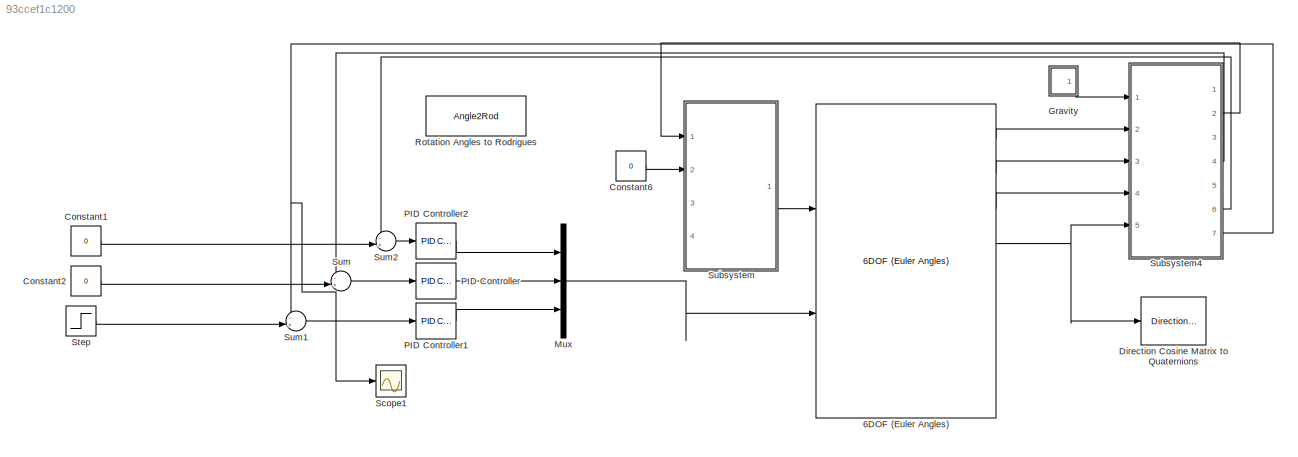
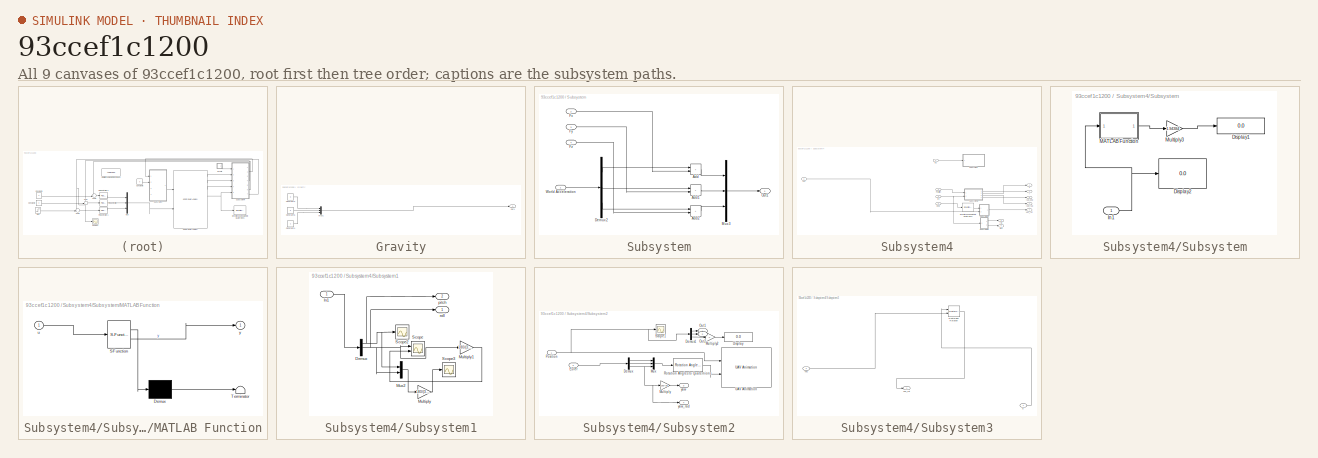
[diagram: thumbnail index - all 9 canvases of the model, root first then tree order]
MODEL slx_93ccef1c1200
KIND model
CONFIG AbsTol = auto
CONFIG EnableMultiTasking = off
CONFIG FixedStep = auto
CONFIG MaxStep = 0.005
CONFIG MinStep = auto
CONFIG RelTol = 1e-3
CONFIG SampleTimeConstraint = Unconstrained
CONFIG SolverName = ode45
CONFIG StartTime = 0.0
CONFIG StopTime = 50
BLOCK [Reference] 6DOF (Euler Angles)  REF=shared6dof/6DOF (Euler Angles)
  Ports = [2, 8]
  SourceBlock = shared6dof/6DOF (Euler Angles)
  SourceProductBaseCode = AE,PW,MT,UV,VE,VP
  SourceType = 6DOF EoM (Body Axis)
BLOCK [Constant] Constant1
  Value = 0
BLOCK [Constant] Constant2
  Value = 0
BLOCK [Constant] Constant6
  Value = 0
BLOCK [Reference] Direction Cosine Matrix to Quaternions  REF=sharedtransform/Direction Cosine Matrix 
to Quaternions
  Ports = [1, 1]
  SourceBlock = sharedtransform/Direction Cosine Matrix \nto Quaternions
  SourceProductBaseCode = AE,PW,MT,UV,VE,VP
  SourceType = DCM2Quaternion
BLOCK [SubSystem] Gravity
  Ports = [0, 1]
  RequestExecContextInheritance = off
BLOCK [Constant] Gravity/Constant3
  Value = 0
BLOCK [Constant] Gravity/Constant4
BLOCK [Constant] Gravity/Constant5
  Value = 0
BLOCK [Mux] Gravity/Mux1
  DisplayOption = bar
  Inputs = 3
  Ports = [3, 1]
BLOCK [Outport] Gravity/Out1
BLOCK [Mux] Mux
  DisplayOption = bar
  Inputs = 3
  Ports = [3, 1]
BLOCK [Reference] PID Controller  REF=pid_lib/PID Controller
  Ports = [1, 1]
  SourceBlock = pid_lib/PID Controller
  SourceProductBaseCode = SL
  SourceType = PID 1dof
BLOCK [Reference] PID Controller1  REF=pid_lib/PID Controller
  Ports = [1, 1]
  SourceBlock = pid_lib/PID Controller
  SourceProductBaseCode = SL
  SourceType = PID 1dof
BLOCK [Reference] PID Controller2  REF=pid_lib/PID Controller
  Ports = [1, 1]
  SourceBlock = pid_lib/PID Controller
  SourceProductBaseCode = SL
  SourceType = PID 1dof
BLOCK [Angle2Rod] Rotation Angles to Rodrigues
  AttributesFormatString = Rotation Order: %<rotationOrder>
  Ports = [1, 1]
BLOCK [Scope] Scope1
  Floating = off
  NumInputPorts = 1
  Ports = [1]
  ScopeSpecificationString = Simulink.scopes.TimeScopeBlockCfg('CurrentConfiguration', extmgr.ConfigurationSet(extmgr.Configuration('Core','General UI',true),extmgr.Configuration('Core','Source UI',true),extmgr.Configuration('Sources','WiredSimulink',true,'DataLoggingVariableName','ScopeData4'),extmgr.Configuration('Visuals','Time Domain',true,'SerializedDisplays',{struct('MinYLimReal','-1.00000','MaxYLimReal','1.00000','YLab...<+1371ch>
BLOCK [Step] Step
  After = 0
  SampleTime = 0
  Time = 15
BLOCK [SubSystem] Subsystem
  Ports = [4, 1]
  RequestExecContextInheritance = off
BLOCK [Sum] Subsystem/Add
  IconShape = rectangular
  Ports = [2, 1]
BLOCK [Sum] Subsystem/Add1
  IconShape = rectangular
  Ports = [2, 1]
BLOCK [Sum] Subsystem/Add2
  IconShape = rectangular
  Ports = [2, 1]
BLOCK [Demux] Subsystem/Demux2
  Outputs = 3
  Ports = [1, 3]
BLOCK [Inport] Subsystem/Fx
  Port = 2
BLOCK [Inport] Subsystem/Fy
  Port = 3
BLOCK [Inport] Subsystem/Fz
  Port = 4
BLOCK [Mux] Subsystem/Mux3
  DisplayOption = bar
  Inputs = 3
  Ports = [3, 1]
BLOCK [Outport] Subsystem/Out1
BLOCK [Inport] Subsystem/World Acceleration
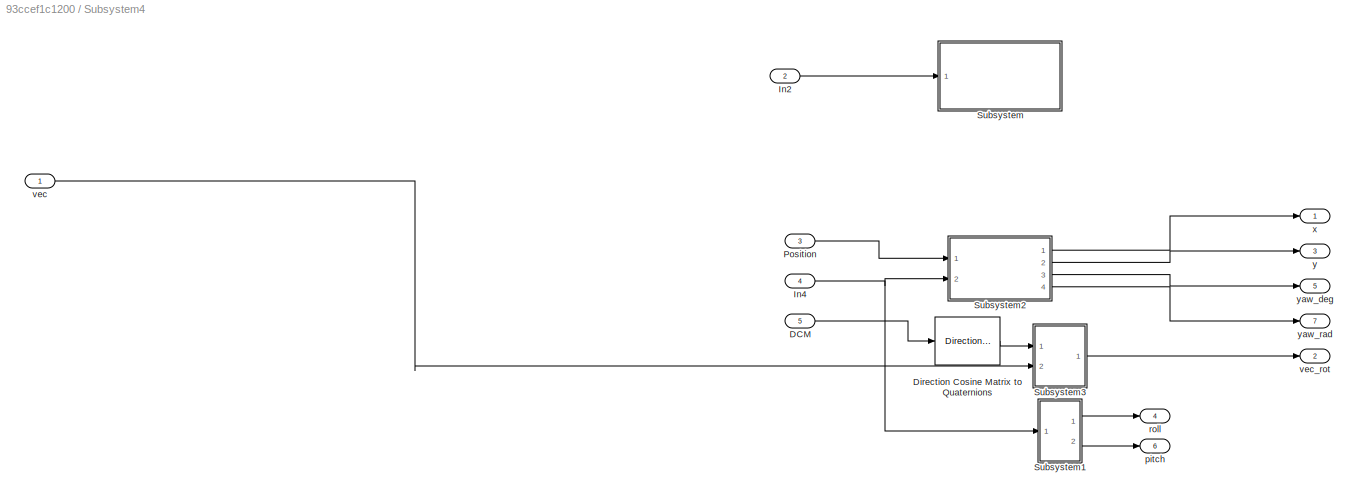
BLOCK [SubSystem] Subsystem4
  Ports = [5, 7]
  RequestExecContextInheritance = off
BLOCK [Inport] Subsystem4/DCM
  Port = 5
BLOCK [Reference] Subsystem4/Direction Cosine Matrix to Quaternions  REF=sharedtransform/Direction Cosine Matrix 
to Quaternions
  Ports = [1, 1]
  SourceBlock = sharedtransform/Direction Cosine Matrix \nto Quaternions
  SourceProductBaseCode = AE,PW,MT,UV,VE,VP
  SourceType = DCM2Quaternion
BLOCK [Inport] Subsystem4/In2
  Port = 2
BLOCK [Inport] Subsystem4/In4
  Port = 4
BLOCK [Inport] Subsystem4/Position
  Port = 3
BLOCK [SubSystem] Subsystem4/Subsystem
  Ports = [1]
  RequestExecContextInheritance = off
BLOCK [Display] Subsystem4/Subsystem/Display1
  Decimation = 1
  Ports = [1]
BLOCK [Display] Subsystem4/Subsystem/Display2
  Decimation = 1
  Ports = [1]
BLOCK [Inport] Subsystem4/Subsystem/In1
BLOCK [SubSystem] Subsystem4/Subsystem/MATLAB Function
  ErrorFcn = Stateflow.Translate.translate
  PermitHierarchicalResolution = ExplicitOnly
  Ports = [1, 1]
  RequestExecContextInheritance = off
  SFBlockType = MATLAB Function
  TreatAsAtomicUnit = on
BLOCK [Demux] Subsystem4/Subsystem/MATLAB Function/ Demux 
  Outputs = 1
  Ports = [1, 1]
BLOCK [S-Function] Subsystem4/Subsystem/MATLAB Function/ SFunction 
  EnableBusSupport = on
  FunctionName = sf_sfun
  PortCounts = [1 2]
  Ports = [1, 2]
  SFcnIsStateOwnerBlock = off
  SFunctionDeploymentMode = off
  Tag = Stateflow S-Function 2
BLOCK [Terminator] Subsystem4/Subsystem/MATLAB Function/ Terminator 
BLOCK [Inport] Subsystem4/Subsystem/MATLAB Function/u
BLOCK [Outport] Subsystem4/Subsystem/MATLAB Function/y
BLOCK [Gain] Subsystem4/Subsystem/Multiply3
  Gain = 1.94384
BLOCK [SubSystem] Subsystem4/Subsystem1
  Ports = [1, 2]
  RequestExecContextInheritance = off
BLOCK [Demux] Subsystem4/Subsystem1/Demux
  Outputs = 3
  Ports = [1, 3]
BLOCK [Inport] Subsystem4/Subsystem1/In1
BLOCK [Gain] Subsystem4/Subsystem1/Multiply
  Gain = 180/(3.14159265359)
BLOCK [Gain] Subsystem4/Subsystem1/Multiply1
  Gain = 180/(3.14159265359)
BLOCK [Mux] Subsystem4/Subsystem1/Mux2
  DisplayOption = bar
  Inputs = 2
  Ports = [2, 1]
BLOCK [Scope] Subsystem4/Subsystem1/Scope
  Floating = off
  NumInputPorts = 2
  Ports = [2]
  ScopeSpecificationString = Simulink.scopes.TimeScopeBlockCfg('CurrentConfiguration', extmgr.ConfigurationSet(extmgr.Configuration('Core','General UI',true,'DisplayFullSourceName',true),extmgr.Configuration('Core','Source UI',true),extmgr.Configuration('Sources','WiredSimulink',true),extmgr.Configuration('Visuals','Time Domain',true,'SerializedDisplays',{struct('MinYLimReal','-1.00000','MaxYLimReal','1.00000','YLabelReal',''...<+1464ch>
BLOCK [Scope] Subsystem4/Subsystem1/Scope2
  Floating = off
  NumInputPorts = 1
  Ports = [1]
  ScopeSpecificationString = Simulink.scopes.TimeScopeBlockCfg('CurrentConfiguration', extmgr.ConfigurationSet(extmgr.Configuration('Core','General UI',true),extmgr.Configuration('Core','Source UI',true),extmgr.Configuration('Sources','WiredSimulink',true,'DataLoggingVariableName','ScopeData1'),extmgr.Configuration('Visuals','Time Domain',true,'SerializedDisplays',{struct('MinYLimReal','-1.00000','MaxYLimReal','1.00000','YLab...<+1395ch>
BLOCK [Scope] Subsystem4/Subsystem1/Scope3
  Floating = off
  NumInputPorts = 1
  Ports = [1]
  ScopeSpecificationString = Simulink.scopes.TimeScopeBlockCfg('CurrentConfiguration', extmgr.ConfigurationSet(extmgr.Configuration('Core','General UI',true),extmgr.Configuration('Core','Source UI',true),extmgr.Configuration('Sources','WiredSimulink',true,'DataLoggingVariableName','ScopeData2'),extmgr.Configuration('Visuals','Time Domain',true,'SerializedDisplays',{struct('MinYLimReal','-1.00000','MaxYLimReal','1.00000','YLab...<+1382ch>
BLOCK [Outport] Subsystem4/Subsystem1/pitch
  Port = 2
BLOCK [Outport] Subsystem4/Subsystem1/roll
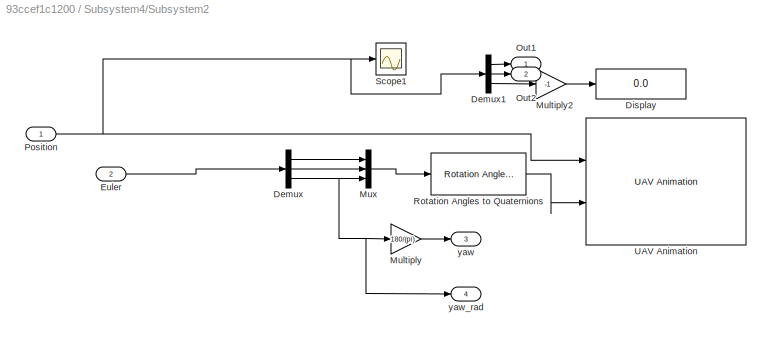
BLOCK [SubSystem] Subsystem4/Subsystem2
  Ports = [2, 4]
  RequestExecContextInheritance = off
BLOCK [Demux] Subsystem4/Subsystem2/Demux
  Outputs = 3
  Ports = [1, 3]
BLOCK [Demux] Subsystem4/Subsystem2/Demux1
  Outputs = 3
  Ports = [1, 3]
BLOCK [Display] Subsystem4/Subsystem2/Display
  Decimation = 1
  Ports = [1]
BLOCK [Inport] Subsystem4/Subsystem2/Euler
  Port = 2
BLOCK [Gain] Subsystem4/Subsystem2/Multiply
  Gain = 180/(pi)
BLOCK [Gain] Subsystem4/Subsystem2/Multiply2
  Gain = -1
BLOCK [Mux] Subsystem4/Subsystem2/Mux
  DisplayOption = bar
  Inputs = 3
  Ports = [3, 1]
BLOCK [Outport] Subsystem4/Subsystem2/Out1
BLOCK [Outport] Subsystem4/Subsystem2/Out2
  Port = 2
BLOCK [Inport] Subsystem4/Subsystem2/Position
BLOCK [Reference] Subsystem4/Subsystem2/Rotation Angles to Quaternions  REF=sharedtransform/Rotation Angles to Quaternions
  AttributesFormatString = Rotation Order: %<rotationOrder>
  Ports = [1, 1]
  SourceBlock = sharedtransform/Rotation Angles to Quaternions
  SourceProductBaseCode = AE,PW,MT,UV,VE,VP
  SourceType = Ang2Quat
BLOCK [Scope] Subsystem4/Subsystem2/Scope1
  Floating = off
  NumInputPorts = 1
  Ports = [1]
  ScopeSpecificationString = Simulink.scopes.TimeScopeBlockCfg('CurrentConfiguration', extmgr.ConfigurationSet(extmgr.Configuration('Core','General UI',true),extmgr.Configuration('Core','Source UI',true),extmgr.Configuration('Sources','WiredSimulink',true,'DataLoggingVariableName','ScopeData1'),extmgr.Configuration('Visuals','Time Domain',true,'SerializedDisplays',{struct('MinYLimReal','-156.25','MaxYLimReal','1406.25','YLabe...<+1467ch>
BLOCK [Reference] Subsystem4/Subsystem2/UAV Animation  REF=uavutilslib/UAV Animation
  Ports = [2]
  SourceBlock = uavutilslib/UAV Animation
  SourceProductBaseCode = UV
  SourceType = uav.sluav.internal.system.UAVAnimation
BLOCK [Outport] Subsystem4/Subsystem2/yaw
  Port = 3
BLOCK [Outport] Subsystem4/Subsystem2/yaw_rad
  Port = 4
BLOCK [SubSystem] Subsystem4/Subsystem3
  Ports = [2, 1]
  RequestExecContextInheritance = off
BLOCK [Reference] Subsystem4/Subsystem3/Quaternion Rotation  REF=aerolibutil/Quaternion
Rotation
  Ports = [2, 1]
  SourceBlock = aerolibutil/Quaternion\nRotation
  SourceProductBaseCode = AE
  SourceType = Quaternion Rotation
BLOCK [Inport] Subsystem4/Subsystem3/q
BLOCK [Inport] Subsystem4/Subsystem3/vec
  Port = 2
BLOCK [Outport] Subsystem4/Subsystem3/vec_rot
BLOCK [Outport] Subsystem4/pitch
  Port = 6
BLOCK [Outport] Subsystem4/roll
  Port = 4
BLOCK [Inport] Subsystem4/vec
BLOCK [Outport] Subsystem4/vec_rot
  Port = 2
BLOCK [Outport] Subsystem4/x
BLOCK [Outport] Subsystem4/y
  Port = 3
BLOCK [Outport] Subsystem4/yaw_deg
  Port = 5
BLOCK [Outport] Subsystem4/yaw_rad
  Port = 7
BLOCK [Sum] Sum
  Inputs = -+|
  Ports = [2, 1]
BLOCK [Sum] Sum1
  Inputs = -+|
  Ports = [2, 1]
BLOCK [Sum] Sum2
  Inputs = -+|
  Ports = [2, 1]
LINE 6DOF (Euler Angles):1 -> Subsystem4:2
LINE 6DOF (Euler Angles):2 -> Subsystem4:3
LINE 6DOF (Euler Angles):3 -> Subsystem4:4
NET 6DOF (Euler Angles):4 -> Direction Cosine Matrix to Quaternions:1, Subsystem4:5
LINE Constant1:1 -> Sum2:2
LINE Constant2:1 -> Sum:2
LINE Constant6:1 -> Subsystem:2
LINE Gravity/Constant3:1 -> Gravity/Mux1:1
LINE Gravity/Constant4:1 -> Gravity/Mux1:3
LINE Gravity/Constant5:1 -> Gravity/Mux1:2
LINE Gravity/Mux1:1 -> Gravity/Out1:1
LINE Gravity:1 -> Subsystem4:1
LINE Mux:1 -> 6DOF (Euler Angles):2
LINE PID Controller1:1 -> Mux:3
LINE PID Controller2:1 -> Mux:1
LINE PID Controller:1 -> Mux:2
LINE Step:1 -> Sum1:2
LINE Subsystem/Add1:1 -> Subsystem/Mux3:2
LINE Subsystem/Add2:1 -> Subsystem/Mux3:3
LINE Subsystem/Add:1 -> Subsystem/Mux3:1
LINE Subsystem/Demux2:1 -> Subsystem/Add:1
LINE Subsystem/Demux2:2 -> Subsystem/Add1:1
LINE Subsystem/Demux2:3 -> Subsystem/Add2:1
LINE Subsystem/Fx:1 -> Subsystem/Add:2
LINE Subsystem/Fy:1 -> Subsystem/Add1:2
LINE Subsystem/Fz:1 -> Subsystem/Add2:2
LINE Subsystem/Mux3:1 -> Subsystem/Out1:1
LINE Subsystem/World Acceleration:1 -> Subsystem/Demux2:1
LINE Subsystem4/DCM:1 -> Subsystem4/Direction Cosine Matrix to Quaternions:1
LINE Subsystem4/Direction Cosine Matrix to Quaternions:1 -> Subsystem4/Subsystem3:1
LINE Subsystem4/In2:1 -> Subsystem4/Subsystem:1
NET Subsystem4/In4:1 -> Subsystem4/Subsystem1:1, Subsystem4/Subsystem2:2
LINE Subsystem4/Position:1 -> Subsystem4/Subsystem2:1
NET Subsystem4/Subsystem/In1:1 -> Subsystem4/Subsystem/Display2:1, Subsystem4/Subsystem/MATLAB Function:1
LINE Subsystem4/Subsystem/MATLAB Function:1 -> Subsystem4/Subsystem/Multiply3:1
LINE Subsystem4/Subsystem/Multiply3:1 -> Subsystem4/Subsystem/Display1:1
NET Subsystem4/Subsystem1/Demux:1 -> Subsystem4/Subsystem1/Mux2:1, Subsystem4/Subsystem1/Scope2:1, Subsystem4/Subsystem1/pitch:1
NET Subsystem4/Subsystem1/Demux:2 -> Subsystem4/Subsystem1/Multiply1:1, Subsystem4/Subsystem1/Mux2:2, Subsystem4/Subsystem1/Scope:1, Subsystem4/Subsystem1/roll:1
LINE Subsystem4/Subsystem1/In1:1 -> Subsystem4/Subsystem1/Demux:1
LINE Subsystem4/Subsystem1/Multiply1:1 -> Subsystem4/Subsystem1/Scope:2
LINE Subsystem4/Subsystem1/Multiply:1 -> Subsystem4/Subsystem1/Scope3:1
LINE Subsystem4/Subsystem1/Mux2:1 -> Subsystem4/Subsystem1/Multiply:1
LINE Subsystem4/Subsystem1:1 -> Subsystem4/roll:1
LINE Subsystem4/Subsystem1:2 -> Subsystem4/pitch:1
LINE Subsystem4/Subsystem2/Demux1:1 -> Subsystem4/Subsystem2/Out1:1
LINE Subsystem4/Subsystem2/Demux1:2 -> Subsystem4/Subsystem2/Out2:1
LINE Subsystem4/Subsystem2/Demux1:3 -> Subsystem4/Subsystem2/Multiply2:1
LINE Subsystem4/Subsystem2/Demux:1 -> Subsystem4/Subsystem2/Mux:1
LINE Subsystem4/Subsystem2/Demux:2 -> Subsystem4/Subsystem2/Mux:2
NET Subsystem4/Subsystem2/Demux:3 -> Subsystem4/Subsystem2/Multiply:1, Subsystem4/Subsystem2/Mux:3, Subsystem4/Subsystem2/yaw_rad:1
LINE Subsystem4/Subsystem2/Euler:1 -> Subsystem4/Subsystem2/Demux:1
LINE Subsystem4/Subsystem2/Multiply2:1 -> Subsystem4/Subsystem2/Display:1
LINE Subsystem4/Subsystem2/Multiply:1 -> Subsystem4/Subsystem2/yaw:1
LINE Subsystem4/Subsystem2/Mux:1 -> Subsystem4/Subsystem2/Rotation Angles to Quaternions:1
NET Subsystem4/Subsystem2/Position:1 -> Subsystem4/Subsystem2/Demux1:1, Subsystem4/Subsystem2/Scope1:1, Subsystem4/Subsystem2/UAV Animation:1
LINE Subsystem4/Subsystem2/Rotation Angles to Quaternions:1 -> Subsystem4/Subsystem2/UAV Animation:2
LINE Subsystem4/Subsystem2:1 -> Subsystem4/x:1
LINE Subsystem4/Subsystem2:2 -> Subsystem4/y:1
LINE Subsystem4/Subsystem2:3 -> Subsystem4/yaw_deg:1
LINE Subsystem4/Subsystem2:4 -> Subsystem4/yaw_rad:1
LINE Subsystem4/Subsystem3/Quaternion Rotation:1 -> Subsystem4/Subsystem3/vec_rot:1
LINE Subsystem4/Subsystem3/q:1 -> Subsystem4/Subsystem3/Quaternion Rotation:1
LINE Subsystem4/Subsystem3/vec:1 -> Subsystem4/Subsystem3/Quaternion Rotation:2
LINE Subsystem4/Subsystem3:1 -> Subsystem4/vec_rot:1
LINE Subsystem4/vec:1 -> Subsystem4/Subsystem3:2
LINE Subsystem4:2 -> Subsystem:1
LINE Subsystem4:4 -> Sum:1
LINE Subsystem4:6 -> Sum2:1
NET Subsystem4:7 -> Scope1:1, Sum1:1
LINE Subsystem:1 -> 6DOF (Euler Angles):1
LINE Sum1:1 -> PID Controller1:1
LINE Sum2:1 -> PID Controller2:1
LINE Sum:1 -> PID Controller:1
note: NET lines group one-source signal fan-out (src -> all destinations, sorted); 1:1 wires keep LINE
CHART Subsystem4/Subsystem/MATLAB Function states=1 transitions=1
  STATE_LABEL 'eML_blk_kernel()'
  STATE_LABEL 'SCRIPT:\nfunction y = fcn(u)\n\ny = norm(u);\n\nend\n'
CHART  states=0 transitions=0
